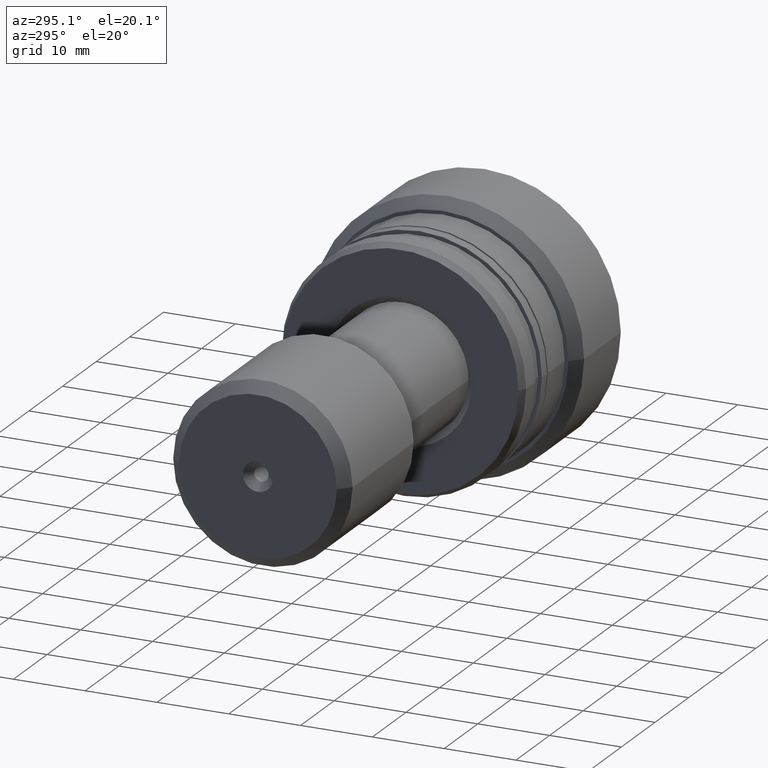
[diagram: clean part render]
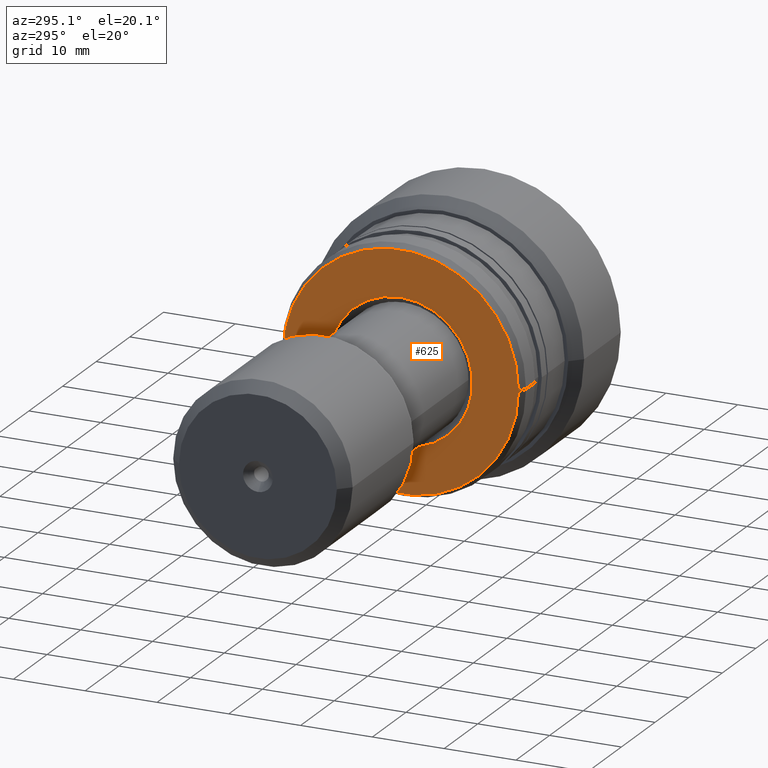
[diagram: same view with one face highlighted and labeled with its STEP entity id]
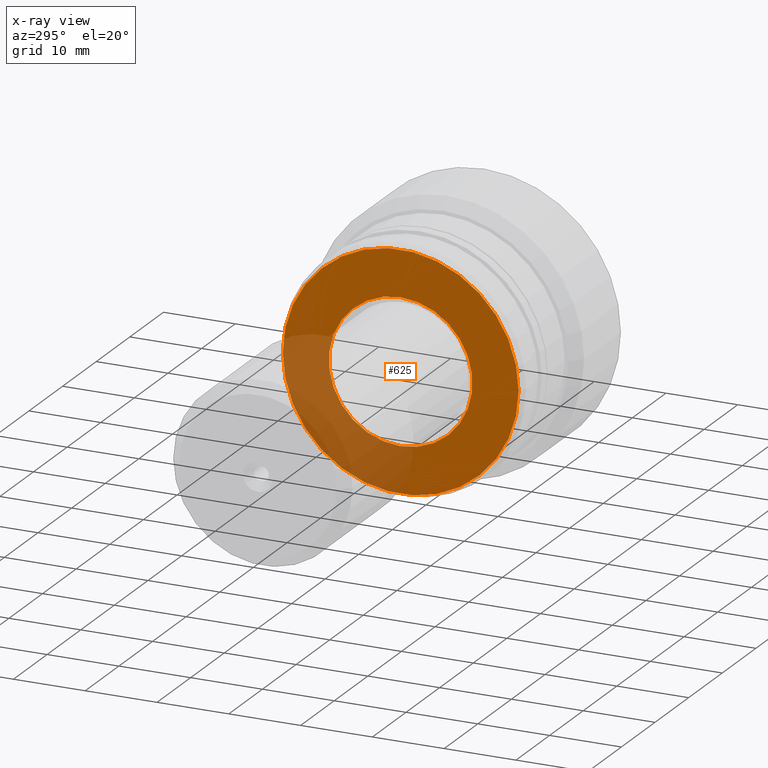
[diagram: x-ray of the same camera — body ghosted, the highlighted face saturated]
A machine part, auxiliary view. The second image highlights one B-rep face of the part: STEP entity #625.
The next image is the same camera in x-ray: the body ghosted, the highlighted face saturated — about 30% of this face is hidden behind the body in this view.
In plain terms, the highlighted planar face has unit normal (-1, 0, 0).
Its self-contained STEP definition (entity closure, byte-faithful):
#204 = CIRCLE ( 'NONE', #2330, 16.42264973081047685 ) ;
#229 = EDGE_CURVE ( 'NONE', #936, #551, #204, .T. ) ;
#291 = CIRCLE ( 'NONE', #920, 16.42264973081047685 ) ;
#313 = CARTESIAN_POINT ( 'NONE',  ( -26.49999999999998934, 1.224646799147347143E-15, -9.999999999999952038 ) ) ;
#330 = DIRECTION ( 'NONE',  ( -1.000000000000000000, 9.810081908519753690E-16, -0.000000000000000000 ) ) ;
#413 = EDGE_LOOP ( 'NONE', ( #1307, #1384 ) ) ;
#468 = CARTESIAN_POINT ( 'NONE',  ( -26.49999999999998934, 0.000000000000000000, 9.999999999999952038 ) ) ;
#551 = VERTEX_POINT ( 'NONE', #2302 ) ;
#622 = FACE_BOUND ( 'NONE', #413, .T. ) ;
#625 = ADVANCED_FACE ( 'NONE', ( #622, #1000 ), #1380, .T. ) ;
#692 = DIRECTION ( 'NONE',  ( -1.000000000000000000, 9.810081908519753690E-16, -0.000000000000000000 ) ) ;
#773 = VERTEX_POINT ( 'NONE', #468 ) ;
#782 = EDGE_LOOP ( 'NONE', ( #1125, #1048 ) ) ;
#920 = AXIS2_PLACEMENT_3D ( 'NONE', #2052, #330, #1828 ) ;
#932 = DIRECTION ( 'NONE',  ( 1.000000000000000000, -9.810081908519753690E-16, 0.000000000000000000 ) ) ;
#936 = VERTEX_POINT ( 'NONE', #2185 ) ;
#973 = DIRECTION ( 'NONE',  ( -9.810081908519753690E-16, -1.000000000000000000, 0.000000000000000000 ) ) ;
#1000 = FACE_OUTER_BOUND ( 'NONE', #782, .T. ) ;
#1022 = CARTESIAN_POINT ( 'NONE',  ( -26.49999999999997868, -3.708233295962672312E-15, 0.000000000000000000 ) ) ;
#1048 = ORIENTED_EDGE ( 'NONE', *, *, #2234, .T. ) ;
#1083 = CIRCLE ( 'NONE', #1278, 9.999999999999962697 ) ;
#1125 = ORIENTED_EDGE ( 'NONE', *, *, #229, .T. ) ;
#1187 = DIRECTION ( 'NONE',  ( 1.000000000000000000, -9.810081908519753690E-16, 0.000000000000000000 ) ) ;
#1278 = AXIS2_PLACEMENT_3D ( 'NONE', #1675, #932, #1840 ) ;
#1286 = EDGE_CURVE ( 'NONE', #773, #2290, #2399, .T. ) ;
#1307 = ORIENTED_EDGE ( 'NONE', *, *, #1286, .T. ) ;
#1380 = PLANE ( 'NONE',  #1945 ) ;
#1384 = ORIENTED_EDGE ( 'NONE', *, *, #2237, .T. ) ;
#1415 = DIRECTION ( 'NONE',  ( -1.040834085586088201E-15, -1.000000000000000000, 0.000000000000000000 ) ) ;
#1623 = AXIS2_PLACEMENT_3D ( 'NONE', #2334, #1187, #1415 ) ;
#1675 = CARTESIAN_POINT ( 'NONE',  ( -26.49999999999998934, 0.000000000000000000, 0.000000000000000000 ) ) ;
#1828 = DIRECTION ( 'NONE',  ( -1.056299381897123643E-15, -1.000000000000000000, 0.000000000000000000 ) ) ;
#1840 = DIRECTION ( 'NONE',  ( -1.040834085586088201E-15, -1.000000000000000000, 0.000000000000000000 ) ) ;
#1912 = DIRECTION ( 'NONE',  ( -1.000000000000000000, 9.810081908519753690E-16, 0.000000000000000000 ) ) ;
#1945 = AXIS2_PLACEMENT_3D ( 'NONE', #2091, #1912, #973 ) ;
#2052 = CARTESIAN_POINT ( 'NONE',  ( -26.49999999999997868, -3.708233295962672312E-15, 0.000000000000000000 ) ) ;
#2091 = CARTESIAN_POINT ( 'NONE',  ( -26.49999999999998934, -3.708233295962664424E-15, 0.000000000000000000 ) ) ;
#2185 = CARTESIAN_POINT ( 'NONE',  ( -26.49999999999996092, 16.42264973081047330, 0.000000000000000000 ) ) ;
#2187 = DIRECTION ( 'NONE',  ( -1.056299381897123643E-15, -1.000000000000000000, 0.000000000000000000 ) ) ;
#2234 = EDGE_CURVE ( 'NONE', #551, #936, #291, .T. ) ;
#2237 = EDGE_CURVE ( 'NONE', #2290, #773, #1083, .T. ) ;
#2290 = VERTEX_POINT ( 'NONE', #313 ) ;
#2302 = CARTESIAN_POINT ( 'NONE',  ( -26.49999999999999645, -16.42264973081048041, 2.046547050593009849E-15 ) ) ;
#2330 = AXIS2_PLACEMENT_3D ( 'NONE', #1022, #692, #2187 ) ;
#2334 = CARTESIAN_POINT ( 'NONE',  ( -26.49999999999998934, 0.000000000000000000, 0.000000000000000000 ) ) ;
#2399 = CIRCLE ( 'NONE', #1623, 9.999999999999962697 ) ;